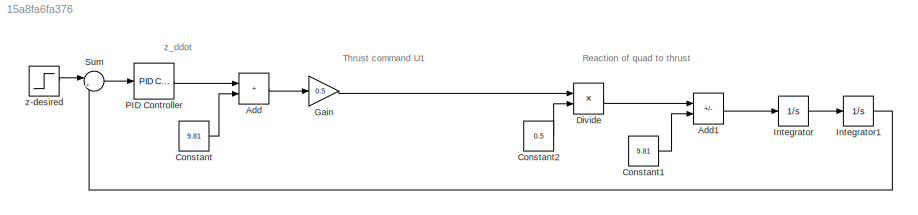
MODEL slx_15a8fa6fa376
KIND model
CONFIG AbsTol = auto
CONFIG EnableMultiTasking = off
CONFIG FixedStep = auto
CONFIG MaxStep = auto
CONFIG MinStep = auto
CONFIG RelTol = 1e-3
CONFIG SampleTimeConstraint = Unconstrained
CONFIG Solver = VariableStepAuto
CONFIG SolverName = VariableStepAuto
CONFIG StartTime = 0.0
CONFIG StopTime = 10.0
BLOCK [Sum] Add
  IconShape = rectangular
  Ports = [2, 1]
BLOCK [Sum] Add1
  IconShape = rectangular
  Inputs = +-
  Ports = [2, 1]
BLOCK [Constant] Constant
  Value = 9.81
BLOCK [Constant] Constant1
  Value = 9.81
BLOCK [Constant] Constant2
  Value = 0.5
BLOCK [Product] Divide
  Inputs = */
  Ports = [2, 1]
BLOCK [Gain] Gain
  Gain = 0.5
BLOCK [Integrator] Integrator
  Ports = [1, 1]
BLOCK [Integrator] Integrator1
  Ports = [1, 1]
BLOCK [Reference] PID Controller  REF=simulink/Continuous/PID Controller
  Ports = [1, 1]
  SourceBlock = simulink/Continuous/PID Controller
  SourceProductBaseCode = SL
  SourceType = PID 1dof
BLOCK [Sum] Sum
  Inputs = |+-
  Ports = [2, 1]
BLOCK [Step] z-desired
  SampleTime = 0
ANNOTATION (root): Reaction of quad to thrust
ANNOTATION (root): Thrust command U1
ANNOTATION (root): z_ddot
LINE Add1:1 -> Integrator:1
LINE Add:1 -> Gain:1
LINE Constant1:1 -> Add1:2
LINE Constant2:1 -> Divide:2
LINE Constant:1 -> Add:2
LINE Divide:1 -> Add1:1
LINE Gain:1 -> Divide:1
LINE Integrator1:1 -> Sum:2
LINE Integrator:1 -> Integrator1:1
LINE PID Controller:1 -> Add:1
LINE Sum:1 -> PID Controller:1
LINE z-desired:1 -> Sum:1
